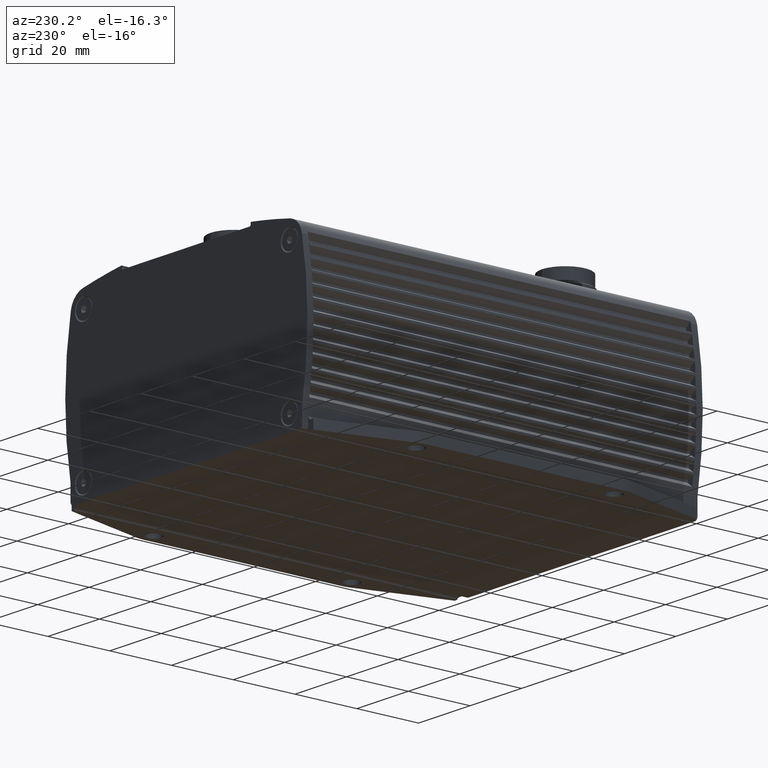
[diagram: clean part render]
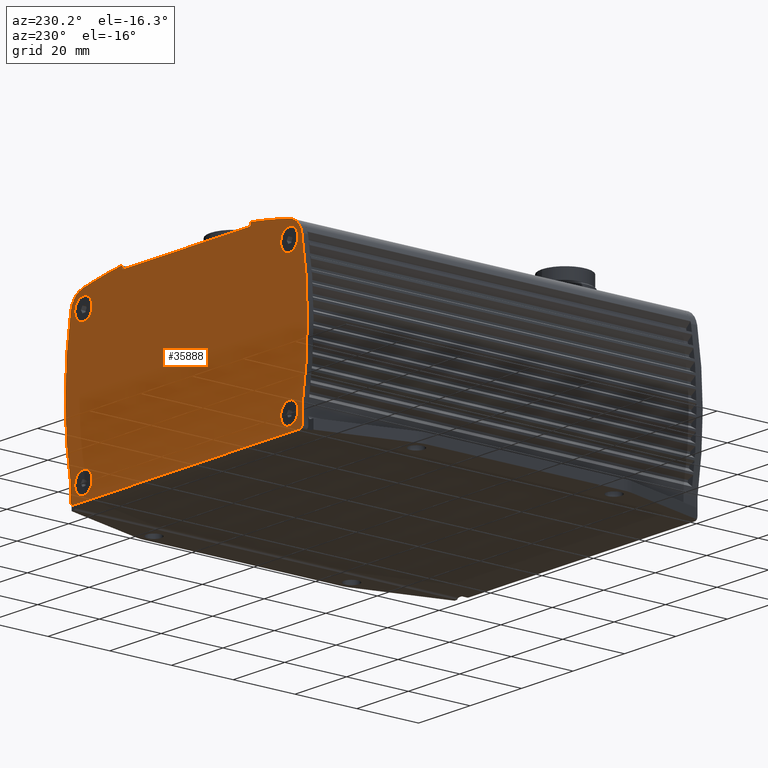
[diagram: same view with one face highlighted and labeled with its STEP entity id]
A machine part, auxiliary view. The second image highlights one B-rep face of the part: STEP entity #35888.
In plain terms, the highlighted planar face has unit normal (0, 1, 0).
Its self-contained STEP definition (entity closure, byte-faithful):
#35266=CARTESIAN_POINT('',(42.000000000000021,1.0,-21.649999999999999));
#35267=VERTEX_POINT('',#35266);
#35274=CARTESIAN_POINT('',(42.000000000000021,1.000000000000001,-28.350000000000001));
#35275=VERTEX_POINT('',#35274);
#35276=CARTESIAN_POINT('',(42.000000000000021,1.0,-25.0));
#35277=DIRECTION('',(0.0,-1.0,0.0));
#35278=DIRECTION('',(0.0,0.0,1.0));
#35279=AXIS2_PLACEMENT_3D('',#35276,#35277,#35278);
#35280=CIRCLE('',#35279,3.350000000000000);
#35281=EDGE_CURVE('',#35275,#35267,#35280,.T.);
#35340=CARTESIAN_POINT('',(-37.999999999999979,1.0,-21.649999999999999));
#35341=VERTEX_POINT('',#35340);
#35348=CARTESIAN_POINT('',(-37.999999999999979,1.000000000000001,-28.350000000000001));
#35349=VERTEX_POINT('',#35348);
#35350=CARTESIAN_POINT('',(-37.999999999999979,1.0,-25.0));
#35351=DIRECTION('',(0.0,-1.0,0.0));
#35352=DIRECTION('',(0.0,0.0,1.0));
#35353=AXIS2_PLACEMENT_3D('',#35350,#35351,#35352);
#35354=CIRCLE('',#35353,3.350000000000000);
#35355=EDGE_CURVE('',#35349,#35341,#35354,.T.);
#35414=CARTESIAN_POINT('',(42.000000000000028,1.0,23.350000000000001));
#35415=VERTEX_POINT('',#35414);
#35422=CARTESIAN_POINT('',(42.000000000000028,1.000000000000001,16.649999999999999));
#35423=VERTEX_POINT('',#35422);
#35424=CARTESIAN_POINT('',(42.000000000000028,1.0,20.0));
#35425=DIRECTION('',(0.0,-1.0,0.0));
#35426=DIRECTION('',(0.0,0.0,1.0));
#35427=AXIS2_PLACEMENT_3D('',#35424,#35425,#35426);
#35428=CIRCLE('',#35427,3.350000000000000);
#35429=EDGE_CURVE('',#35423,#35415,#35428,.T.);
#35488=CARTESIAN_POINT('',(-37.999999999999964,1.0,23.350000000000001));
#35489=VERTEX_POINT('',#35488);
#35496=CARTESIAN_POINT('',(-37.999999999999964,1.000000000000001,16.649999999999999));
#35497=VERTEX_POINT('',#35496);
#35498=CARTESIAN_POINT('',(-37.999999999999964,1.0,20.0));
#35499=DIRECTION('',(0.0,-1.0,0.0));
#35500=DIRECTION('',(0.0,0.0,1.0));
#35501=AXIS2_PLACEMENT_3D('',#35498,#35499,#35500);
#35502=CIRCLE('',#35501,3.350000000000000);
#35503=EDGE_CURVE('',#35497,#35489,#35502,.T.);
#35520=CARTESIAN_POINT('',(-22.500000000000057,1.0,26.799999999999997));
#35521=VERTEX_POINT('',#35520);
#35522=CARTESIAN_POINT('',(-23.0,1.0,27.299999999999997));
#35523=VERTEX_POINT('',#35522);
#35524=CARTESIAN_POINT('',(-22.500000000000057,1.0,27.299999999999997));
#35525=DIRECTION('',(0.0,1.000000000000000,0.0));
#35526=DIRECTION('',(-0.707106781186548,0.0,-0.707106781186548));
#35527=AXIS2_PLACEMENT_3D('',#35524,#35525,#35526);
#35528=CIRCLE('',#35527,0.500000000000000);
#35529=EDGE_CURVE('',#35521,#35523,#35528,.T.);
#35563=CARTESIAN_POINT('',(-23.0,1.0,27.704439909907165));
#35564=VERTEX_POINT('',#35563);
#35565=CARTESIAN_POINT('',(-23.0,1.0,27.704439909907165));
#35566=DIRECTION('',(0.0,0.0,-1.0));
#35567=VECTOR('',#35566,0.404439909907168);
#35568=LINE('',#35565,#35567);
#35569=EDGE_CURVE('',#35564,#35523,#35568,.T.);
#35593=CARTESIAN_POINT('',(27.0,1.0,27.299999999999997));
#35594=VERTEX_POINT('',#35593);
#35595=CARTESIAN_POINT('',(26.500000000000114,1.0,26.799999999999997));
#35596=VERTEX_POINT('',#35595);
#35597=CARTESIAN_POINT('',(26.500000000000114,1.0,27.299999999999997));
#35598=DIRECTION('',(0.0,1.000000000000000,0.0));
#35599=DIRECTION('',(0.707106781186548,0.0,-0.707106781186548));
#35600=AXIS2_PLACEMENT_3D('',#35597,#35598,#35599);
#35601=CIRCLE('',#35600,0.500000000000000);
#35602=EDGE_CURVE('',#35594,#35596,#35601,.T.);
#35643=CARTESIAN_POINT('',(-22.500000000000057,1.0,26.799999999999997));
#35644=DIRECTION('',(1.0,0.0,0.0));
#35645=VECTOR('',#35644,49.000000000000171);
#35646=LINE('',#35643,#35645);
#35647=EDGE_CURVE('',#35521,#35596,#35646,.T.);
#35668=CARTESIAN_POINT('',(27.225225225225341,1.0,27.902842752659836));
#35669=VERTEX_POINT('',#35668);
#35676=CARTESIAN_POINT('',(27.0,1.0,27.704439909907165));
#35677=VERTEX_POINT('',#35676);
#35678=CARTESIAN_POINT('',(27.200000000000120,1.0,27.704439909907165));
#35679=DIRECTION('',(0.0,-1.0,0.0));
#35680=DIRECTION('',(-0.661012055061783,0.0,0.750375281484538));
#35681=AXIS2_PLACEMENT_3D('',#35678,#35679,#35680);
#35682=CIRCLE('',#35681,0.200000000000000);
#35683=EDGE_CURVE('',#35669,#35677,#35682,.T.);
#35707=CARTESIAN_POINT('',(27.0,1.0,27.299999999999997));
#35708=DIRECTION('',(0.0,0.0,1.0));
#35709=VECTOR('',#35708,0.404439909907168);
#35710=LINE('',#35707,#35709);
#35711=EDGE_CURVE('',#35594,#35677,#35710,.T.);
#35716=CARTESIAN_POINT('',(-1.776357E-015,1.0,-1.519964879853895));
#35717=DIRECTION('',(0.0,1.0,0.0));
#35718=DIRECTION('',(0.0,0.0,1.0));
#35719=AXIS2_PLACEMENT_3D('',#35716,#35717,#35718);
#35720=PLANE('',#35719);
#35721=ORIENTED_EDGE('',*,*,#35683,.F.);
#35722=CARTESIAN_POINT('',(42.206185567010564,1.0,25.416978953206382));
#35723=VERTEX_POINT('',#35722);
#35724=CARTESIAN_POINT('',(2.0,1.0,-170.500000000000000));
#35725=DIRECTION('',(0.0,1.0,0.0));
#35726=DIRECTION('',(1.0,0.0,0.0));
#35727=AXIS2_PLACEMENT_3D('',#35724,#35725,#35726);
#35728=CIRCLE('',#35727,200.0);
#35729=EDGE_CURVE('',#35669,#35723,#35728,.T.);
#35730=ORIENTED_EDGE('',*,*,#35729,.T.);
#35731=CARTESIAN_POINT('',(46.900000000000034,1.0,20.630340796074908));
#35732=VERTEX_POINT('',#35731);
#35733=CARTESIAN_POINT('',(41.000000000000242,1.0,19.539469584610202));
#35734=DIRECTION('',(0.0,-1.000000000000000,0.0));
#35735=DIRECTION('',(0.774929328337447,0.0,0.632047890655822));
#35736=AXIS2_PLACEMENT_3D('',#35733,#35734,#35735);
#35737=CIRCLE('',#35736,5.999999999999999);
#35738=EDGE_CURVE('',#35732,#35723,#35737,.T.);
#35739=ORIENTED_EDGE('',*,*,#35738,.F.);
#35740=CARTESIAN_POINT('',(46.900000000000034,1.0,20.631136582834927));
#35741=VERTEX_POINT('',#35740);
#35742=CARTESIAN_POINT('',(46.900000000000034,1.0,20.630340796074908));
#35743=DIRECTION('',(0.0,0.0,1.0));
#35744=VECTOR('',#35743,0.000795786760019);
#35745=LINE('',#35742,#35744);
#35746=EDGE_CURVE('',#35732,#35741,#35745,.T.);
#35747=ORIENTED_EDGE('',*,*,#35746,.T.);
#35748=CARTESIAN_POINT('',(47.000000000000021,1.0,-24.104049721702207));
#35749=VERTEX_POINT('',#35748);
#35750=CARTESIAN_POINT('',(-70.946644657236902,1.0,-2.0));
#35751=DIRECTION('',(0.0,1.0,0.0));
#35752=DIRECTION('',(1.0,0.0,0.0));
#35753=AXIS2_PLACEMENT_3D('',#35750,#35751,#35752);
#35754=CIRCLE('',#35753,120.0);
#35755=EDGE_CURVE('',#35741,#35749,#35754,.T.);
#35756=ORIENTED_EDGE('',*,*,#35755,.T.);
#35757=CARTESIAN_POINT('',(47.000000000000028,1.0,-29.0));
#35758=VERTEX_POINT('',#35757);
#35759=CARTESIAN_POINT('',(47.000000000000021,1.0,-24.104049721702207));
#35760=DIRECTION('',(0.0,0.0,-1.0));
#35761=VECTOR('',#35760,4.895950278297793);
#35762=LINE('',#35759,#35761);
#35763=EDGE_CURVE('',#35749,#35758,#35762,.T.);
#35764=ORIENTED_EDGE('',*,*,#35763,.T.);
#35765=CARTESIAN_POINT('',(46.000000000000284,1.0,-30.0));
#35766=VERTEX_POINT('',#35765);
#35767=CARTESIAN_POINT('',(46.000000000000284,1.0,-29.0));
#35768=DIRECTION('',(0.0,-1.000000000000000,0.0));
#35769=DIRECTION('',(0.707106781186548,0.0,-0.707106781186548));
#35770=AXIS2_PLACEMENT_3D('',#35767,#35768,#35769);
#35771=CIRCLE('',#35770,1.000000000000000);
#35772=EDGE_CURVE('',#35766,#35758,#35771,.T.);
#35773=ORIENTED_EDGE('',*,*,#35772,.F.);
#35774=CARTESIAN_POINT('',(-42.0,1.0,-30.0));
#35775=VERTEX_POINT('',#35774);
#35776=CARTESIAN_POINT('',(46.000000000000284,1.0,-30.0));
#35777=DIRECTION('',(-1.0,0.0,0.0));
#35778=VECTOR('',#35777,88.000000000000284);
#35779=LINE('',#35776,#35778);
#35780=EDGE_CURVE('',#35766,#35775,#35779,.T.);
#35781=ORIENTED_EDGE('',*,*,#35780,.T.);
#35782=CARTESIAN_POINT('',(-43.000000000000028,1.0,-29.0));
#35783=VERTEX_POINT('',#35782);
#35784=CARTESIAN_POINT('',(-42.0,1.0,-29.0));
#35785=DIRECTION('',(0.0,-1.000000000000000,0.0));
#35786=DIRECTION('',(-0.707106781186548,0.0,-0.707106781186548));
#35787=AXIS2_PLACEMENT_3D('',#35784,#35785,#35786);
#35788=CIRCLE('',#35787,1.000000000000000);
#35789=EDGE_CURVE('',#35783,#35775,#35788,.T.);
#35790=ORIENTED_EDGE('',*,*,#35789,.F.);
#35791=CARTESIAN_POINT('',(-43.000000000000021,1.0,-24.104049721702534));
#35792=VERTEX_POINT('',#35791);
#35793=CARTESIAN_POINT('',(-43.000000000000028,1.0,-29.0));
#35794=DIRECTION('',(0.0,0.0,1.0));
#35795=VECTOR('',#35794,4.895950278297466);
#35796=LINE('',#35793,#35795);
#35797=EDGE_CURVE('',#35783,#35792,#35796,.T.);
#35798=ORIENTED_EDGE('',*,*,#35797,.T.);
#35799=CARTESIAN_POINT('',(-42.900000000000034,1.0,20.631136582835197));
#35800=VERTEX_POINT('',#35799);
#35801=CARTESIAN_POINT('',(74.946644657236845,1.0,-2.0));
#35802=DIRECTION('',(0.0,-1.0,0.0));
#35803=DIRECTION('',(1.0,0.0,0.0));
#35804=AXIS2_PLACEMENT_3D('',#35801,#35802,#35803);
#35805=CIRCLE('',#35804,120.0);
#35806=EDGE_CURVE('',#35800,#35792,#35805,.T.);
#35807=ORIENTED_EDGE('',*,*,#35806,.F.);
#35808=CARTESIAN_POINT('',(-42.900000000000034,1.0,20.630340796073433));
#35809=VERTEX_POINT('',#35808);
#35810=CARTESIAN_POINT('',(-42.900000000000034,1.0,20.630340796073433));
#35811=DIRECTION('',(0.0,0.0,1.0));
#35812=VECTOR('',#35811,0.000795786761763);
#35813=LINE('',#35810,#35812);
#35814=EDGE_CURVE('',#35809,#35800,#35813,.T.);
#35815=ORIENTED_EDGE('',*,*,#35814,.F.);
#35816=CARTESIAN_POINT('',(-38.206185567010273,1.0,25.416978953206439));
#35817=VERTEX_POINT('',#35816);
#35818=CARTESIAN_POINT('',(-36.999999999999964,1.0,19.539469584610231));
#35819=DIRECTION('',(0.0,-1.000000000000000,0.0));
#35820=DIRECTION('',(-0.774929328337445,0.0,0.632047890655823));
#35821=AXIS2_PLACEMENT_3D('',#35818,#35819,#35820);
#35822=CIRCLE('',#35821,6.0);
#35823=EDGE_CURVE('',#35817,#35809,#35822,.T.);
#35824=ORIENTED_EDGE('',*,*,#35823,.F.);
#35825=CARTESIAN_POINT('',(-23.225225225225277,1.0,27.902842752659836));
#35826=VERTEX_POINT('',#35825);
#35827=CARTESIAN_POINT('',(2.0,1.0,-170.500000000000000));
#35828=DIRECTION('',(0.0,1.0,0.0));
#35829=DIRECTION('',(1.0,0.0,0.0));
#35830=AXIS2_PLACEMENT_3D('',#35827,#35828,#35829);
#35831=CIRCLE('',#35830,200.0);
#35832=EDGE_CURVE('',#35817,#35826,#35831,.T.);
#35833=ORIENTED_EDGE('',*,*,#35832,.T.);
#35834=CARTESIAN_POINT('',(-23.200000000000049,1.0,27.704439909907165));
#35835=DIRECTION('',(0.0,-1.0,0.0));
#35836=DIRECTION('',(0.661012055061699,0.0,0.750375281484611));
#35837=AXIS2_PLACEMENT_3D('',#35834,#35835,#35836);
#35838=CIRCLE('',#35837,0.200000000000000);
#35839=EDGE_CURVE('',#35564,#35826,#35838,.T.);
#35840=ORIENTED_EDGE('',*,*,#35839,.F.);
#35841=ORIENTED_EDGE('',*,*,#35569,.T.);
#35842=ORIENTED_EDGE('',*,*,#35529,.F.);
#35843=ORIENTED_EDGE('',*,*,#35647,.T.);
#35844=ORIENTED_EDGE('',*,*,#35602,.F.);
#35845=ORIENTED_EDGE('',*,*,#35711,.T.);
#35846=EDGE_LOOP('',(#35721,#35730,#35739,#35747,#35756,#35764,#35773,#35781,#35790,#35798,#35807,#35815,#35824,#35833,#35840,#35841,#35842,#35843,#35844,#35845));
#35847=FACE_OUTER_BOUND('',#35846,.T.);
#35848=CARTESIAN_POINT('',(42.000000000000021,1.0,-25.0));
#35849=DIRECTION('',(0.0,-1.0,0.0));
#35850=DIRECTION('',(0.0,0.0,1.0));
#35851=AXIS2_PLACEMENT_3D('',#35848,#35849,#35850);
#35852=CIRCLE('',#35851,3.350000000000000);
#35853=EDGE_CURVE('',#35267,#35275,#35852,.T.);
#35854=ORIENTED_EDGE('',*,*,#35853,.T.);
#35855=ORIENTED_EDGE('',*,*,#35281,.T.);
#35856=EDGE_LOOP('',(#35854,#35855));
#35857=FACE_BOUND('',#35856,.T.);
#35858=CARTESIAN_POINT('',(-37.999999999999979,1.0,-25.0));
#35859=DIRECTION('',(0.0,-1.0,0.0));
#35860=DIRECTION('',(0.0,0.0,1.0));
#35861=AXIS2_PLACEMENT_3D('',#35858,#35859,#35860);
#35862=CIRCLE('',#35861,3.350000000000000);
#35863=EDGE_CURVE('',#35341,#35349,#35862,.T.);
#35864=ORIENTED_EDGE('',*,*,#35863,.T.);
#35865=ORIENTED_EDGE('',*,*,#35355,.T.);
#35866=EDGE_LOOP('',(#35864,#35865));
#35867=FACE_BOUND('',#35866,.T.);
#35868=CARTESIAN_POINT('',(42.000000000000028,1.0,20.0));
#35869=DIRECTION('',(0.0,-1.0,0.0));
#35870=DIRECTION('',(0.0,0.0,1.0));
#35871=AXIS2_PLACEMENT_3D('',#35868,#35869,#35870);
#35872=CIRCLE('',#35871,3.350000000000000);
#35873=EDGE_CURVE('',#35415,#35423,#35872,.T.);
#35874=ORIENTED_EDGE('',*,*,#35873,.T.);
#35875=ORIENTED_EDGE('',*,*,#35429,.T.);
#35876=EDGE_LOOP('',(#35874,#35875));
#35877=FACE_BOUND('',#35876,.T.);
#35878=CARTESIAN_POINT('',(-37.999999999999964,1.0,20.0));
#35879=DIRECTION('',(0.0,-1.0,0.0));
#35880=DIRECTION('',(0.0,0.0,1.0));
#35881=AXIS2_PLACEMENT_3D('',#35878,#35879,#35880);
#35882=CIRCLE('',#35881,3.350000000000000);
#35883=EDGE_CURVE('',#35489,#35497,#35882,.T.);
#35884=ORIENTED_EDGE('',*,*,#35883,.T.);
#35885=ORIENTED_EDGE('',*,*,#35503,.T.);
#35886=EDGE_LOOP('',(#35884,#35885));
#35887=FACE_BOUND('',#35886,.T.);
#35888=ADVANCED_FACE('',(#35847,#35857,#35867,#35877,#35887),#35720,.T.);